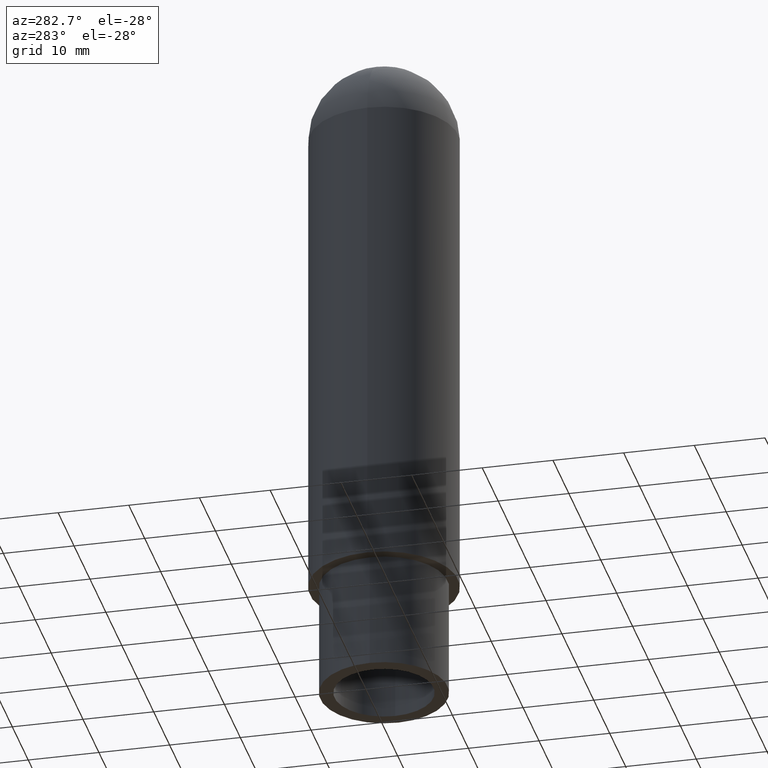
[diagram: clean part render]
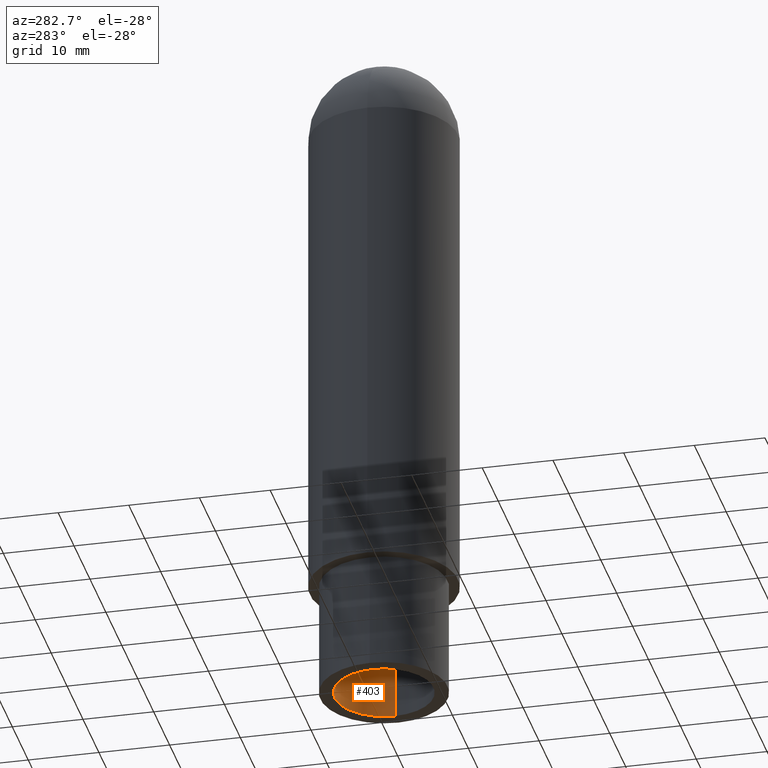
[diagram: same view with one face highlighted and labeled with its STEP entity id]
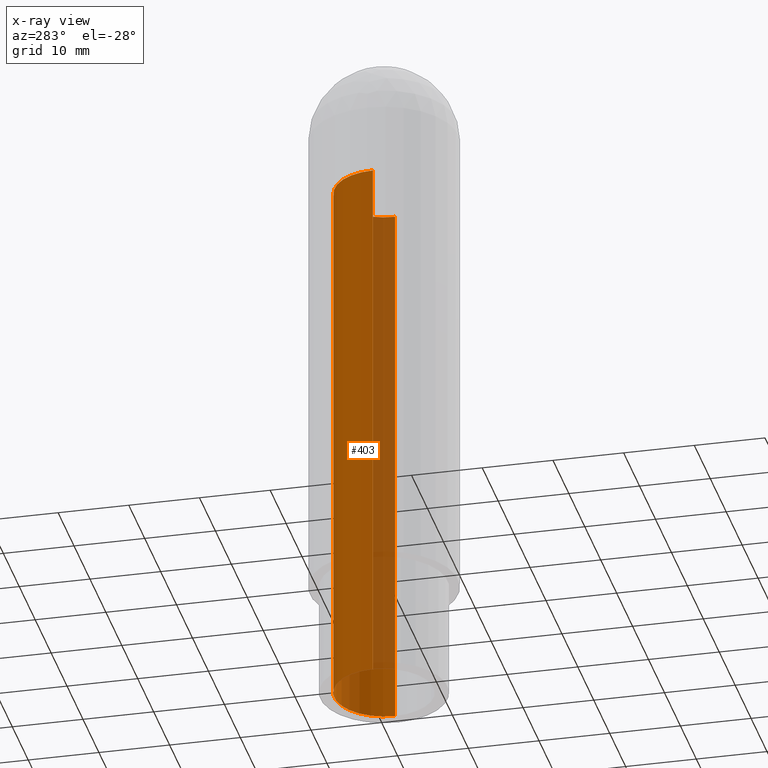
[diagram: x-ray of the same camera — body ghosted, the highlighted face saturated]
A machine part, auxiliary view. The second image highlights one B-rep face of the part: STEP entity #403.
The next image is the same camera in x-ray: the body ghosted, the highlighted face saturated — about 31% of this face is hidden behind the body in this view.
In plain terms, the highlighted cylindrical surface (partial cylindrical patch) has radius 7 mm, axis along (0, 0, 1).
Its self-contained STEP definition (entity closure, byte-faithful):
#91=CARTESIAN_POINT('',(-2.716946060098081,-1.613904443833870,78.0));
#92=VERTEX_POINT('',#91);
#93=CARTESIAN_POINT('',(-2.716946060098081,-1.613904443833870,0.0));
#94=VERTEX_POINT('',#93);
#95=CARTESIAN_POINT('',(-2.716946060098081,-1.613904443833870,78.0));
#96=DIRECTION('',(0.0,0.0,-1.0));
#97=VECTOR('',#96,78.0);
#98=LINE('',#95,#97);
#99=EDGE_CURVE('',#92,#94,#98,.T.);
#101=CARTESIAN_POINT('',(11.283053939901922,-1.613904443833870,78.0));
#102=VERTEX_POINT('',#101);
#110=CARTESIAN_POINT('',(11.283053939901922,-1.613904443833870,0.0));
#111=VERTEX_POINT('',#110);
#112=CARTESIAN_POINT('',(11.283053939901922,-1.613904443833870,0.0));
#113=DIRECTION('',(0.0,0.0,1.0));
#114=VECTOR('',#113,78.0);
#115=LINE('',#112,#114);
#116=EDGE_CURVE('',#111,#102,#115,.T.);
#375=CARTESIAN_POINT('',(4.283053939901920,-1.613904443833871,78.0));
#376=DIRECTION('',(0.0,0.0,1.0));
#377=DIRECTION('',(-1.0,0.0,0.0));
#378=AXIS2_PLACEMENT_3D('',#375,#376,#377);
#379=CIRCLE('',#378,7.000000000000001);
#380=EDGE_CURVE('',#102,#92,#379,.T.);
#386=CARTESIAN_POINT('',(4.283053939901920,-1.613904443833871,0.0));
#387=DIRECTION('',(0.0,0.0,1.0));
#388=DIRECTION('',(-1.0,0.0,0.0));
#389=AXIS2_PLACEMENT_3D('',#386,#387,#388);
#390=CYLINDRICAL_SURFACE('',#389,7.000000000000001);
#391=ORIENTED_EDGE('',*,*,#99,.T.);
#392=CARTESIAN_POINT('',(4.283053939901920,-1.613904443833871,0.0));
#393=DIRECTION('',(0.0,0.0,1.0));
#394=DIRECTION('',(-1.0,0.0,0.0));
#395=AXIS2_PLACEMENT_3D('',#392,#393,#394);
#396=CIRCLE('',#395,7.000000000000001);
#397=EDGE_CURVE('',#111,#94,#396,.T.);
#398=ORIENTED_EDGE('',*,*,#397,.F.);
#399=ORIENTED_EDGE('',*,*,#116,.T.);
#400=ORIENTED_EDGE('',*,*,#380,.T.);
#401=EDGE_LOOP('',(#391,#398,#399,#400));
#402=FACE_OUTER_BOUND('',#401,.T.);
#403=ADVANCED_FACE('',(#402),#390,.F.);